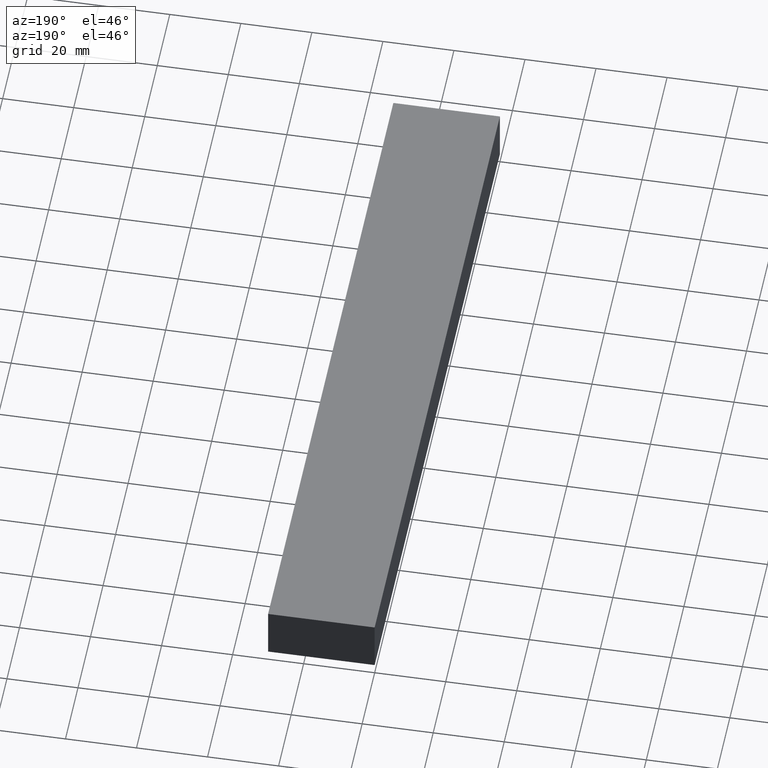
[diagram: clean part render]
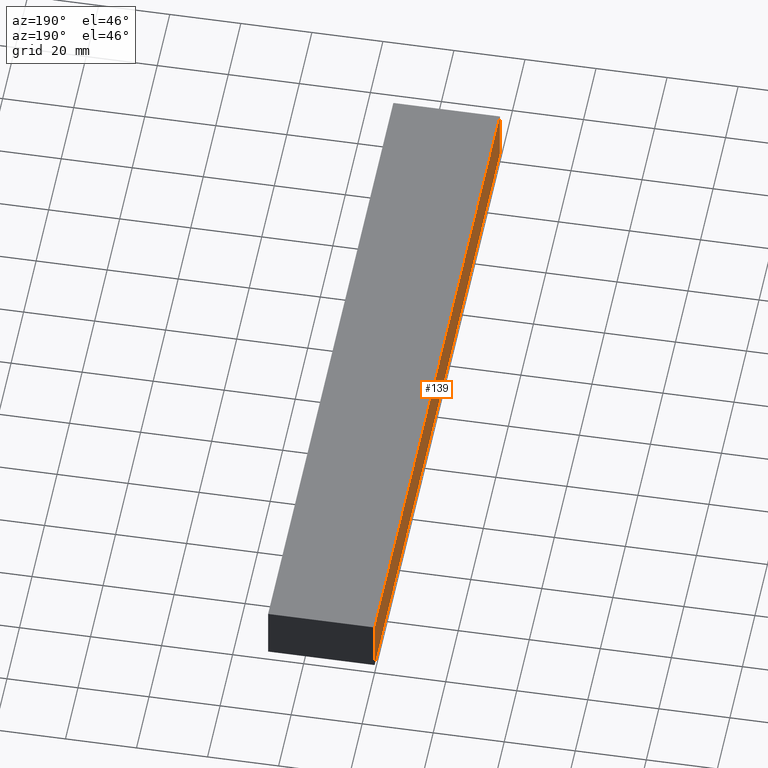
[diagram: same view with one face highlighted and labeled with its STEP entity id]
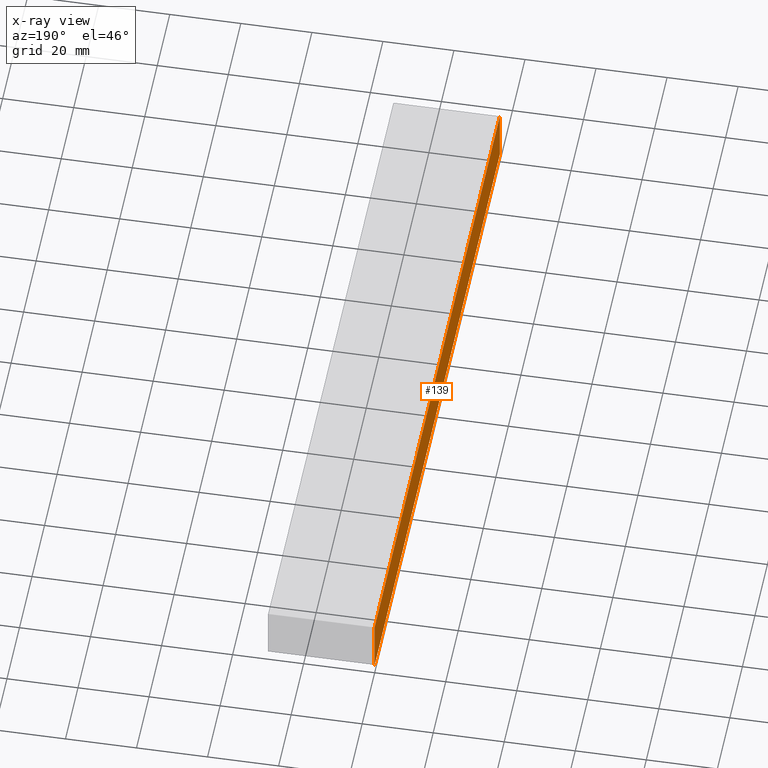
[diagram: x-ray of the same camera — body ghosted, the highlighted face saturated]
A machine part, auxiliary view. The second image highlights one B-rep face of the part: STEP entity #139.
The next image is the same camera in x-ray: the body ghosted, the highlighted face saturated — about 0% of this face is hidden behind the body in this view.
In plain terms, the highlighted planar face has unit normal (-1, 0, 0).
Its self-contained STEP definition (entity closure, byte-faithful):
#6 = DIRECTION ( 'NONE',  ( 0.0000000000000000000, -1.000000000000000000, 0.0000000000000000000 ) ) ;
#8 = VECTOR ( 'NONE', #150, 1000.000000000000000 ) ;
#10 = EDGE_CURVE ( 'NONE', #104, #49, #130, .T. ) ;
#11 = CARTESIAN_POINT ( 'NONE',  ( 0.0000000000000000000, 0.0000000000000000000, 10.00000000000000000 ) ) ;
#28 = ORIENTED_EDGE ( 'NONE', *, *, #10, .F. ) ;
#34 = AXIS2_PLACEMENT_3D ( 'NONE', #236, #140, #146 ) ;
#38 = VECTOR ( 'NONE', #6, 1000.000000000000000 ) ;
#49 = VERTEX_POINT ( 'NONE', #11 ) ;
#59 = VERTEX_POINT ( 'NONE', #76 ) ;
#64 = FACE_OUTER_BOUND ( 'NONE', #225, .T. ) ;
#71 = CARTESIAN_POINT ( 'NONE',  ( 0.0000000000000000000, 200.0000000000000000, 10.00000000000000000 ) ) ;
#76 = CARTESIAN_POINT ( 'NONE',  ( 0.0000000000000000000, 0.0000000000000000000, -5.000000000000000000 ) ) ;
#77 = ORIENTED_EDGE ( 'NONE', *, *, #129, .F. ) ;
#79 = VECTOR ( 'NONE', #222, 1000.000000000000000 ) ;
#87 = VERTEX_POINT ( 'NONE', #136 ) ;
#89 = CARTESIAN_POINT ( 'NONE',  ( 0.0000000000000000000, 200.0000000000000000, 10.00000000000000000 ) ) ;
#98 = EDGE_CURVE ( 'NONE', #87, #59, #153, .T. ) ;
#104 = VERTEX_POINT ( 'NONE', #71 ) ;
#110 = EDGE_CURVE ( 'NONE', #59, #49, #172, .T. ) ;
#123 = ORIENTED_EDGE ( 'NONE', *, *, #98, .T. ) ;
#124 = DIRECTION ( 'NONE',  ( 0.0000000000000000000, 0.0000000000000000000, 1.000000000000000000 ) ) ;
#129 = EDGE_CURVE ( 'NONE', #87, #104, #158, .T. ) ;
#130 = LINE ( 'NONE', #89, #79 ) ;
#131 = CARTESIAN_POINT ( 'NONE',  ( 0.0000000000000000000, 0.0000000000000000000, -5.000000000000000000 ) ) ;
#136 = CARTESIAN_POINT ( 'NONE',  ( 0.0000000000000000000, 200.0000000000000000, -5.000000000000000000 ) ) ;
#139 = ADVANCED_FACE ( 'NONE', ( #64 ), #193, .T. ) ;
#140 = DIRECTION ( 'NONE',  ( -1.000000000000000000, 0.0000000000000000000, 0.0000000000000000000 ) ) ;
#144 = ORIENTED_EDGE ( 'NONE', *, *, #110, .T. ) ;
#146 = DIRECTION ( 'NONE',  ( 0.0000000000000000000, 0.0000000000000000000, 1.000000000000000000 ) ) ;
#150 = DIRECTION ( 'NONE',  ( 0.0000000000000000000, 0.0000000000000000000, 1.000000000000000000 ) ) ;
#153 = LINE ( 'NONE', #235, #38 ) ;
#158 = LINE ( 'NONE', #213, #8 ) ;
#172 = LINE ( 'NONE', #131, #202 ) ;
#193 = PLANE ( 'NONE',  #34 ) ;
#202 = VECTOR ( 'NONE', #124, 1000.000000000000000 ) ;
#213 = CARTESIAN_POINT ( 'NONE',  ( 0.0000000000000000000, 200.0000000000000000, -5.000000000000000000 ) ) ;
#222 = DIRECTION ( 'NONE',  ( 0.0000000000000000000, -1.000000000000000000, 0.0000000000000000000 ) ) ;
#225 = EDGE_LOOP ( 'NONE', ( #28, #77, #123, #144 ) ) ;
#235 = CARTESIAN_POINT ( 'NONE',  ( 0.0000000000000000000, 200.0000000000000000, -5.000000000000000000 ) ) ;
#236 = CARTESIAN_POINT ( 'NONE',  ( 0.0000000000000000000, 200.0000000000000000, -5.000000000000000000 ) ) ;